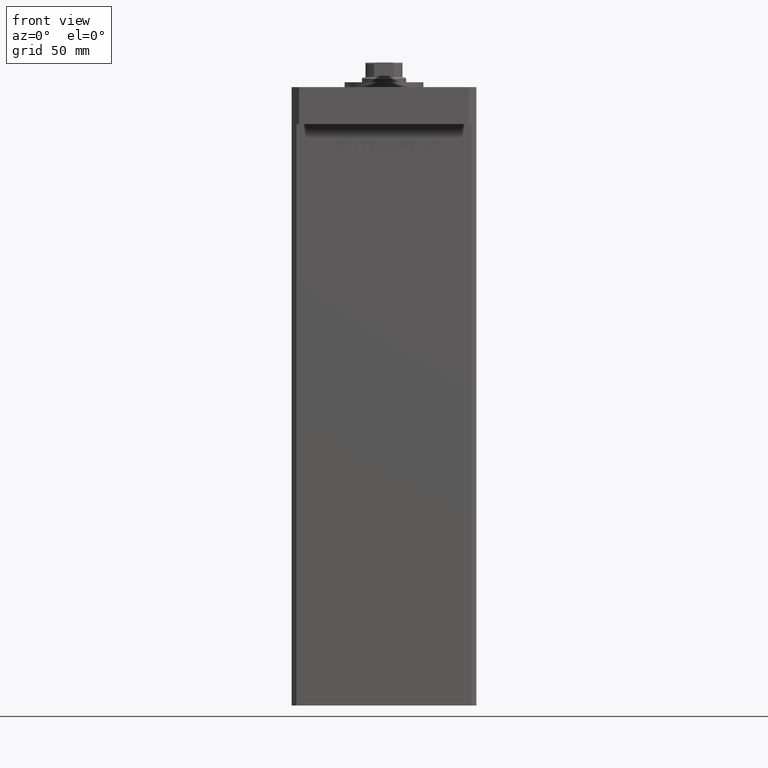
[diagram: clean part render]
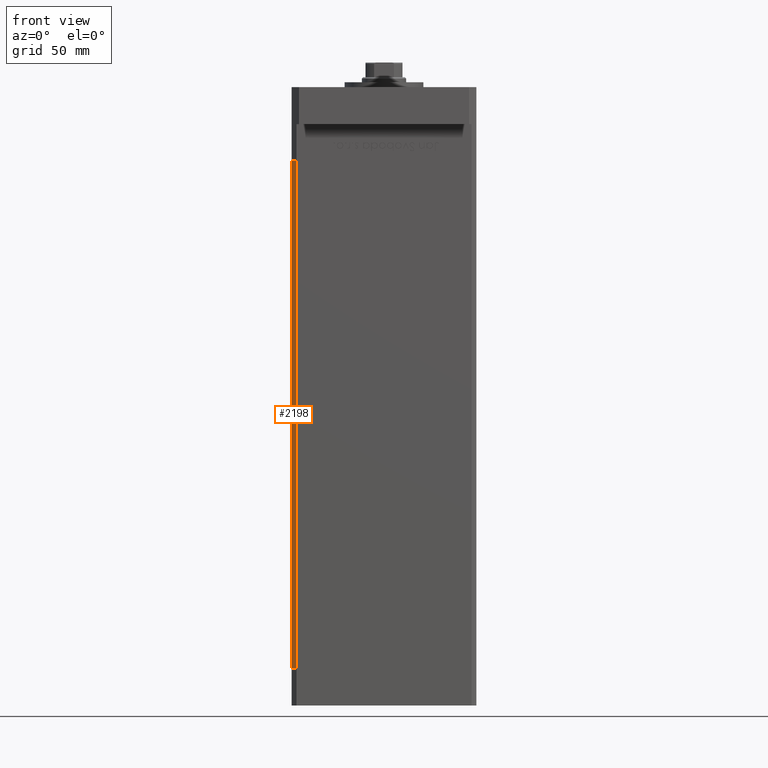
[diagram: same view with one face highlighted and labeled with its STEP entity id]
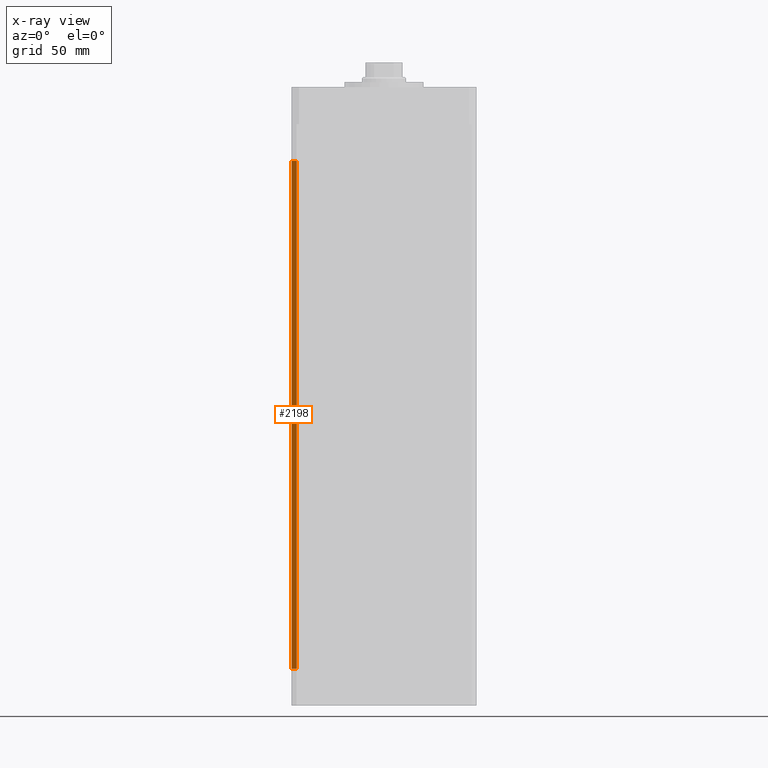
[diagram: x-ray of the same camera — body ghosted, the highlighted face saturated]
A machine part, front view. The second image highlights one B-rep face of the part: STEP entity #2198.
The next image is the same camera in x-ray: the body ghosted, the highlighted face saturated — about 0% of this face is hidden behind the body in this view.
In plain terms, the highlighted planar face has unit normal (0.7071, 0.7071, 0).
Its self-contained STEP definition (entity closure, byte-faithful):
#271 = FACE_OUTER_BOUND ( 'NONE', #48217, .T. ) ;
#1567 = CARTESIAN_POINT ( 'NONE',  ( -35.49999999999999289, -32.50000000000000000, 206.0000000000000000 ) ) ;
#1924 = AXIS2_PLACEMENT_3D ( 'NONE', #17339, #34138, #37405 ) ;
#2198 = ADVANCED_FACE ( 'NONE', ( #271 ), #42010, .F. ) ;
#3757 = EDGE_CURVE ( 'NONE', #45631, #4715, #50180, .T. ) ;
#4715 = VERTEX_POINT ( 'NONE', #18410 ) ;
#5606 = VERTEX_POINT ( 'NONE', #24000 ) ;
#6368 = ORIENTED_EDGE ( 'NONE', *, *, #30026, .F. ) ;
#6621 = CARTESIAN_POINT ( 'NONE',  ( -35.49999999999999289, -32.50000000000000000, 206.0000000000000000 ) ) ;
#9002 = DIRECTION ( 'NONE',  ( 0.7071067811865474617, -0.7071067811865474617, 0.000000000000000000 ) ) ;
#9762 = CARTESIAN_POINT ( 'NONE',  ( -37.49999999999999289, -30.50000000000000000, 206.0000000000000000 ) ) ;
#9987 = LINE ( 'NONE', #1567, #12210 ) ;
#11324 = ORIENTED_EDGE ( 'NONE', *, *, #48223, .T. ) ;
#12210 = VECTOR ( 'NONE', #18107, 1000.000000000000000 ) ;
#12298 = ORIENTED_EDGE ( 'NONE', *, *, #3757, .T. ) ;
#13246 = VECTOR ( 'NONE', #17348, 1000.000000000000000 ) ;
#14375 = VERTEX_POINT ( 'NONE', #6621 ) ;
#14408 = CARTESIAN_POINT ( 'NONE',  ( -37.49999999999999289, -30.50000000000000000, 0.000000000000000000 ) ) ;
#17339 = CARTESIAN_POINT ( 'NONE',  ( -37.49999999999999289, -30.50000000000000000, 206.0000000000000000 ) ) ;
#17348 = DIRECTION ( 'NONE',  ( -0.000000000000000000, -0.000000000000000000, -1.000000000000000000 ) ) ;
#18107 = DIRECTION ( 'NONE',  ( -0.000000000000000000, -0.000000000000000000, -1.000000000000000000 ) ) ;
#18290 = LINE ( 'NONE', #18829, #24176 ) ;
#18410 = CARTESIAN_POINT ( 'NONE',  ( -35.49999999999999289, -32.50000000000000000, 0.000000000000000000 ) ) ;
#18829 = CARTESIAN_POINT ( 'NONE',  ( -37.49999999999999289, -30.50000000000000000, 206.0000000000000000 ) ) ;
#23374 = ORIENTED_EDGE ( 'NONE', *, *, #43993, .F. ) ;
#24000 = CARTESIAN_POINT ( 'NONE',  ( -37.49999999999999289, -30.50000000000000000, 206.0000000000000000 ) ) ;
#24176 = VECTOR ( 'NONE', #50818, 1000.000000000000114 ) ;
#29312 = CARTESIAN_POINT ( 'NONE',  ( -37.49999999999999289, -30.50000000000000000, 0.000000000000000000 ) ) ;
#30026 = EDGE_CURVE ( 'NONE', #5606, #14375, #18290, .T. ) ;
#34138 = DIRECTION ( 'NONE',  ( 0.7071067811865475727, 0.7071067811865475727, -0.000000000000000000 ) ) ;
#37405 = DIRECTION ( 'NONE',  ( -0.7071067811865474617, 0.7071067811865474617, 0.000000000000000000 ) ) ;
#37949 = LINE ( 'NONE', #9762, #13246 ) ;
#42010 = PLANE ( 'NONE',  #1924 ) ;
#43993 = EDGE_CURVE ( 'NONE', #14375, #4715, #9987, .T. ) ;
#45631 = VERTEX_POINT ( 'NONE', #14408 ) ;
#48217 = EDGE_LOOP ( 'NONE', ( #12298, #23374, #6368, #11324 ) ) ;
#48223 = EDGE_CURVE ( 'NONE', #5606, #45631, #37949, .T. ) ;
#50180 = LINE ( 'NONE', #29312, #52194 ) ;
#50818 = DIRECTION ( 'NONE',  ( 0.7071067811865474617, -0.7071067811865474617, 0.000000000000000000 ) ) ;
#52194 = VECTOR ( 'NONE', #9002, 1000.000000000000114 ) ;